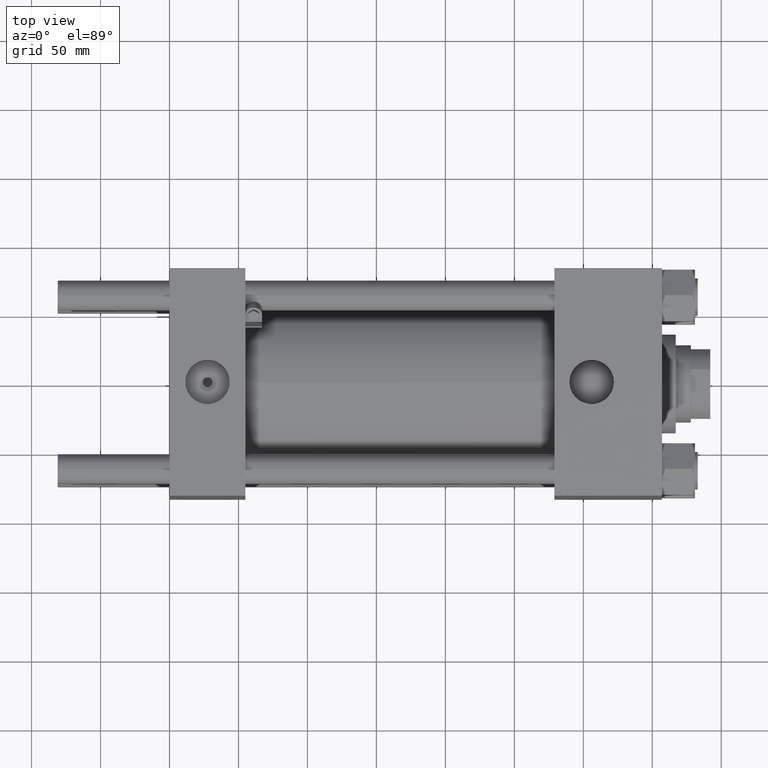
[diagram: clean part render]
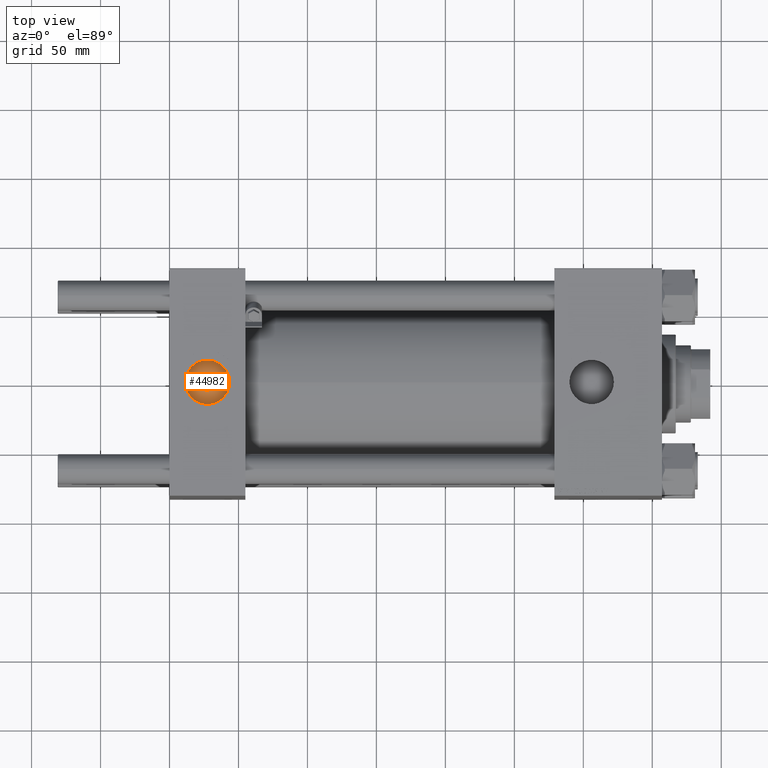
[diagram: same view with one face highlighted and labeled with its STEP entity id]
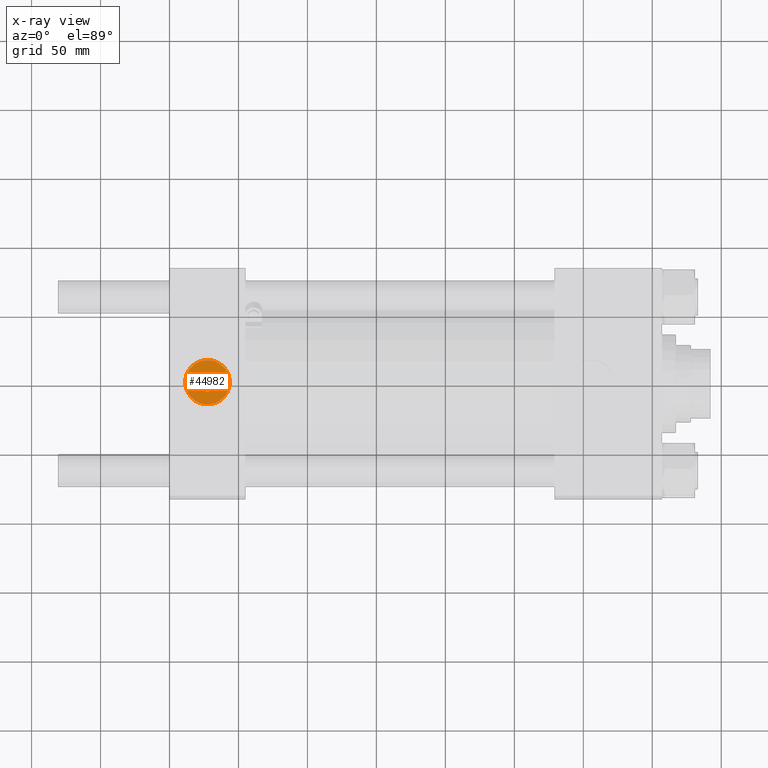
[diagram: x-ray of the same camera — body ghosted, the highlighted face saturated]
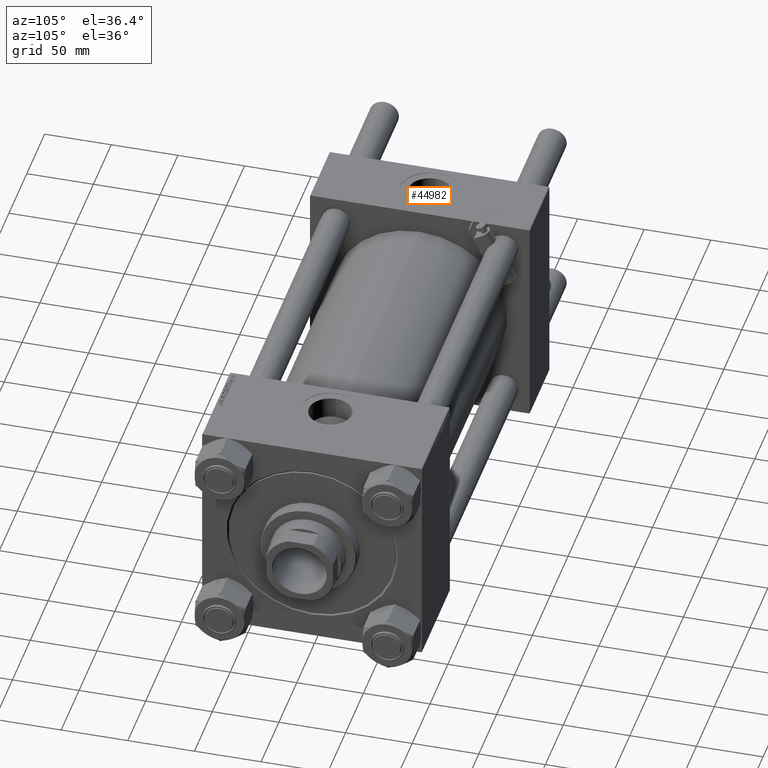
[diagram: same view with one face highlighted and labeled with its STEP entity id]
A machine part, top view. The second image highlights one B-rep face of the part: STEP entity #44982.
The next image is the same camera in x-ray: the body ghosted, the highlighted face saturated — about 0% of this face is hidden behind the body in this view.
A second angle (auxiliary view) of the same face is appended — the face is thin or edge-on in the first view.
In plain terms, the highlighted planar face has unit normal (0, 0, 1).
Its self-contained STEP definition (entity closure, byte-faithful):
#1171 = CARTESIAN_POINT ( 'NONE',  ( 11.37999999999999012, -6.699486739658503022E-15, 71.70000000000001705 ) ) ;
#1609 = VERTEX_POINT ( 'NONE', #23760 ) ;
#4295 = CIRCLE ( 'NONE', #17528, 6.640000000000037872 ) ;
#5466 = DIRECTION ( 'NONE',  ( 1.000000000000000000, 0.000000000000000000, 0.000000000000000000 ) ) ;
#6298 = CARTESIAN_POINT ( 'NONE',  ( 43.62000000000000455, -8.673617379884037050E-15, 71.70000000000001705 ) ) ;
#9316 = CARTESIAN_POINT ( 'NONE',  ( 27.50000000000000000, -8.673617379884037050E-15, 71.70000000000001705 ) ) ;
#9565 = DIRECTION ( 'NONE',  ( 0.000000000000000000, 0.000000000000000000, 1.000000000000000000 ) ) ;
#10234 = EDGE_LOOP ( 'NONE', ( #34455, #14495 ) ) ;
#12244 = AXIS2_PLACEMENT_3D ( 'NONE', #17422, #13786, #5466 ) ;
#13577 = EDGE_CURVE ( 'NONE', #17444, #32350, #42249, .T. ) ;
#13786 = DIRECTION ( 'NONE',  ( 0.000000000000000000, 0.000000000000000000, 1.000000000000000000 ) ) ;
#13972 = AXIS2_PLACEMENT_3D ( 'NONE', #39673, #19658, #51375 ) ;
#14495 = ORIENTED_EDGE ( 'NONE', *, *, #34907, .T. ) ;
#14638 = CIRCLE ( 'NONE', #42055, 6.640000000000037872 ) ;
#14745 = CARTESIAN_POINT ( 'NONE',  ( 27.50000000000000000, -8.673617379884037050E-15, 71.70000000000001705 ) ) ;
#15026 = CARTESIAN_POINT ( 'NONE',  ( 27.50000000000000000, -8.673617379884037050E-15, 71.70000000000001705 ) ) ;
#17422 = CARTESIAN_POINT ( 'NONE',  ( 27.50000000000000000, -8.673617379884037050E-15, 71.70000000000001705 ) ) ;
#17444 = VERTEX_POINT ( 'NONE', #6298 ) ;
#17528 = AXIS2_PLACEMENT_3D ( 'NONE', #15026, #23334, #39207 ) ;
#19658 = DIRECTION ( 'NONE',  ( 0.000000000000000000, 0.000000000000000000, 1.000000000000000000 ) ) ;
#21466 = AXIS2_PLACEMENT_3D ( 'NONE', #9316, #9565, #40771 ) ;
#23262 = VERTEX_POINT ( 'NONE', #40881 ) ;
#23334 = DIRECTION ( 'NONE',  ( -0.000000000000000000, -0.000000000000000000, -1.000000000000000000 ) ) ;
#23515 = EDGE_CURVE ( 'NONE', #23262, #1609, #4295, .T. ) ;
#23760 = CARTESIAN_POINT ( 'NONE',  ( 34.14000000000002899, -8.673617379884037050E-15, 71.70000000000001705 ) ) ;
#27198 = FACE_OUTER_BOUND ( 'NONE', #10234, .T. ) ;
#30598 = DIRECTION ( 'NONE',  ( -0.000000000000000000, -0.000000000000000000, -1.000000000000000000 ) ) ;
#32350 = VERTEX_POINT ( 'NONE', #1171 ) ;
#34455 = ORIENTED_EDGE ( 'NONE', *, *, #13577, .T. ) ;
#34907 = EDGE_CURVE ( 'NONE', #32350, #17444, #46265, .T. ) ;
#35156 = ORIENTED_EDGE ( 'NONE', *, *, #23515, .T. ) ;
#38660 = DIRECTION ( 'NONE',  ( 1.000000000000000000, 0.000000000000000000, 0.000000000000000000 ) ) ;
#39207 = DIRECTION ( 'NONE',  ( 1.000000000000000000, 0.000000000000000000, 0.000000000000000000 ) ) ;
#39420 = PLANE ( 'NONE',  #13972 ) ;
#39673 = CARTESIAN_POINT ( 'NONE',  ( 27.50000000000000000, -8.673617379884037050E-15, 71.70000000000001705 ) ) ;
#39929 = FACE_BOUND ( 'NONE', #47906, .T. ) ;
#40616 = EDGE_CURVE ( 'NONE', #1609, #23262, #14638, .T. ) ;
#40771 = DIRECTION ( 'NONE',  ( 1.000000000000000000, 0.000000000000000000, 0.000000000000000000 ) ) ;
#40881 = CARTESIAN_POINT ( 'NONE',  ( 20.85999999999996390, -7.860451905250189418E-15, 71.70000000000001705 ) ) ;
#42055 = AXIS2_PLACEMENT_3D ( 'NONE', #14745, #30598, #38660 ) ;
#42249 = CIRCLE ( 'NONE', #21466, 16.12000000000000455 ) ;
#44982 = ADVANCED_FACE ( 'NONE', ( #39929, #27198 ), #39420, .T. ) ;
#46265 = CIRCLE ( 'NONE', #12244, 16.12000000000000455 ) ;
#47906 = EDGE_LOOP ( 'NONE', ( #50299, #35156 ) ) ;
#50299 = ORIENTED_EDGE ( 'NONE', *, *, #40616, .T. ) ;
#51375 = DIRECTION ( 'NONE',  ( 1.000000000000000000, 0.000000000000000000, -0.000000000000000000 ) ) ;